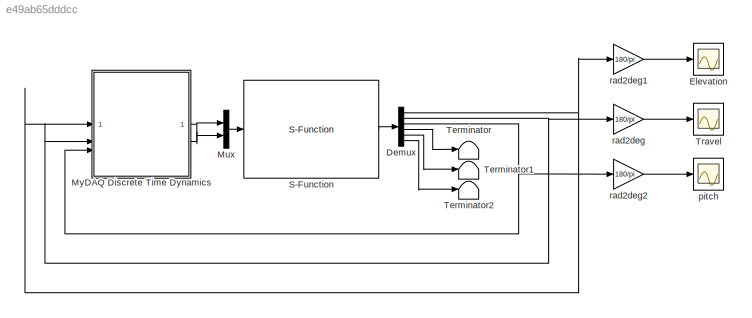
MODEL slx_e49ab65dddcc
KIND model
CONFIG AbsTol = auto
CONFIG EnableMultiTasking = on
CONFIG FixedStep = Ts
CONFIG MaxStep = auto
CONFIG MinStep = auto
CONFIG RelTol = 1e-5
CONFIG SampleTimeConstraint = Unconstrained
CONFIG SolverName = FixedStepAuto
CONFIG StartTime = 0.00
CONFIG StopTime = 10
BLOCK [S-Function]  S-Function
  EnableBusSupport = off
  FunctionName = Nonlinear_Helicopter_SFunc
  Parameters = par,X0
  SFcnIsStateOwnerBlock = off
  SFunctionDeploymentMode = off
BLOCK [Demux] Demux
  Outputs = 6
BLOCK [Scope] Elevation
  ActiveDisplayYMaximum = 30
  ActiveDisplayYMinimum = -50
  DataLogging = on
  DataLoggingDecimateData = on
  DataLoggingDecimation = 1
  DataLoggingSaveFormat = Structure With Time
  DataLoggingVariableName = elev
  Floating = off
  GraphicalSettings = {"GraphicalSettings":{"LegacySettings":true,"Style":{"AxesScalingProperties":{"ScaleAxesLimitsAtStop":false},"Style":{"AxesColor":"[0 0 0]","ChannelNames":[""],"ColorOrder":"[1 0.909803921568627 0.392156862745098;0.149019607843137 0.549019607843137 0.866666666666667;0.96078431372549 0.466666666666667 0.16078431372549;0.286274509803922 0.858823529411765 0.250980392156863;0.752941176470588 0.3607843...<+488ch>  <repeated x3 — deduplicated; at blocks: Elevation, Travel, pitch>
  MultipleDisplayCache = [{"MaxYLimMag":10,"MaxYLimReal":30,"MinYLimMag":0,"MinYLimReal":-50,"PlotAsMagnitudePhase":false,"ShowGrid":true,"ShowLegend":false,"Title":"%<SignalLabel>","YLabel":""}]
  NumInputPorts = 1
  ScopeFrameLocation = window
  TimeSpan = 60
  WasSavedAsWebScope = on
  WindowPosition = [1.000000,49.000000,1920.000000,955.000000,]
BLOCK [Mux] Mux
  DisplayOption = bar
  Inputs = 2
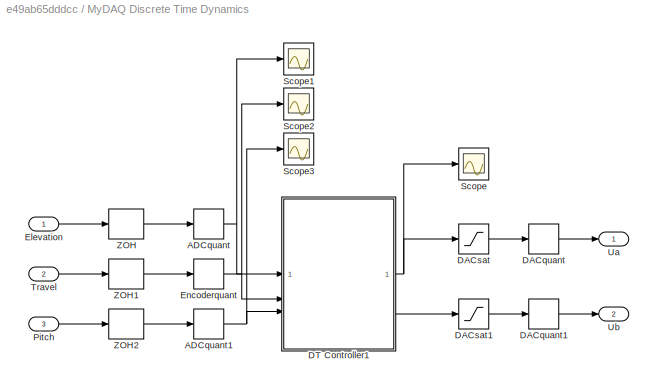
BLOCK [SubSystem] MyDAQ Discrete Time Dynamics
BLOCK [Quantizer] MyDAQ Discrete Time Dynamics/ADCquant
  QuantizationInterval = ADC_Vres
BLOCK [Quantizer] MyDAQ Discrete Time Dynamics/ADCquant1
  QuantizationInterval = ADC_Vres
BLOCK [Quantizer] MyDAQ Discrete Time Dynamics/DACquant
  QuantizationInterval = DAC_Vres
BLOCK [Quantizer] MyDAQ Discrete Time Dynamics/DACquant1
  QuantizationInterval = DAC_Vres
BLOCK [Saturate] MyDAQ Discrete Time Dynamics/DACsat
  LowerLimit = -DAC_lim_u
  UpperLimit = DAC_lim_u
BLOCK [Saturate] MyDAQ Discrete Time Dynamics/DACsat1
  LowerLimit = -DAC_lim_u
  UpperLimit = DAC_lim_u
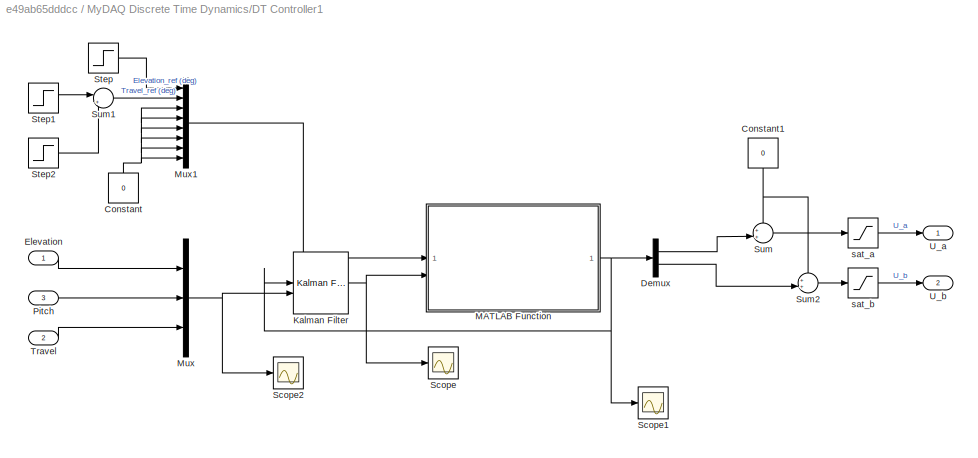
BLOCK [SubSystem] MyDAQ Discrete Time Dynamics/DT Controller1
BLOCK [Constant] MyDAQ Discrete Time Dynamics/DT Controller1/Constant
  NameLocation = right
  Value = 0
BLOCK [Constant] MyDAQ Discrete Time Dynamics/DT Controller1/Constant1
  NameLocation = left
  Value = 0
BLOCK [Demux] MyDAQ Discrete Time Dynamics/DT Controller1/Demux
  Outputs = 2
BLOCK [Inport] MyDAQ Discrete Time Dynamics/DT Controller1/Elevation
BLOCK [Reference] MyDAQ Discrete Time Dynamics/DT Controller1/Kalman Filter  REF=ctrlSharedLib/Kalman Filter
  LibrarySourceBlock = cstblocks/State Estimation/Kalman Filter
  SourceBlock = ctrlSharedLib/Kalman Filter
  SourceType = ctrlKalmanFilter
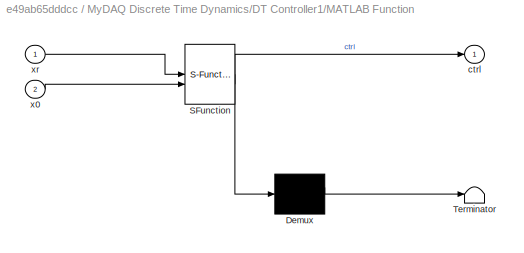
BLOCK [SubSystem] MyDAQ Discrete Time Dynamics/DT Controller1/MATLAB Function
  ErrorFcn = Stateflow.Translate.translate
  PermitHierarchicalResolution = ExplicitOnly
  SFBlockType = MATLAB Function
  TreatAsAtomicUnit = on
BLOCK [Demux] MyDAQ Discrete Time Dynamics/DT Controller1/MATLAB Function/ Demux 
  Outputs = 1
BLOCK [S-Function] MyDAQ Discrete Time Dynamics/DT Controller1/MATLAB Function/ SFunction 
  EnableBusSupport = off
  FunctionName = sf_sfun
  Parameters = N,Q,QN,l,nu,nx,q,u
  PortCounts = [2 2]
  SFcnIsStateOwnerBlock = off
  SFunctionDeploymentMode = off
  Tag = Stateflow S-Function 2
BLOCK [Terminator] MyDAQ Discrete Time Dynamics/DT Controller1/MATLAB Function/ Terminator 
BLOCK [Outport] MyDAQ Discrete Time Dynamics/DT Controller1/MATLAB Function/ctrl
BLOCK [Inport] MyDAQ Discrete Time Dynamics/DT Controller1/MATLAB Function/x0
  Port = 2
BLOCK [Inport] MyDAQ Discrete Time Dynamics/DT Controller1/MATLAB Function/xr
BLOCK [Mux] MyDAQ Discrete Time Dynamics/DT Controller1/Mux
  DisplayOption = bar
  Inputs = 3
BLOCK [Mux] MyDAQ Discrete Time Dynamics/DT Controller1/Mux1
  DisplayOption = bar
  Inputs = 8
BLOCK [Inport] MyDAQ Discrete Time Dynamics/DT Controller1/Pitch
  Port = 3
BLOCK [Scope] MyDAQ Discrete Time Dynamics/DT Controller1/Scope
  ActiveDisplayYMaximum = 1.6155430663981798
  ActiveDisplayYMinimum = -2.4396283803217269
  DataLoggingVariableName = ScopeData3
  Floating = off
  GraphicalSettings = {"Style":{"BackgroundColor":[0.12941176470588237,0.12941176470588237,0.12941176470588237],"AxesColor":[0.07058823529411765,0.07058823529411765,0.07058823529411765],"LabelsColor":[0.8509803921568627,0.8509803921568627,0.8509803921568627],"PreserveColors":false,"Visible":[true,true,true,false,false,false,false,false],"LineStyle":["-","-","-","-","-","-","-","-"],"LineWidth":[1.5,1.5,1.5,1.5,1.5,1.5,...<+2896ch>
  MultipleDisplayCache = [{"MaxYLimMag":0.80765936025648843,"MaxYLimReal":1.6155430663981798,"MinYLimMag":0,"MinYLimReal":-2.4396283803217269,"PlotAsMagnitudePhase":false,"ShowGrid":true,"ShowLegend":true,"Title":"%<SignalLabel>","YLabel":""}]
  NumInputPorts = 1
  ScopeFrameLocation = window
  ShowLegend = on
  Visible = on
  WasSavedAsWebScope = on
  WindowPosition = [-1918.000000,566.000000,1918.000000,484.000000,]
BLOCK [Scope] MyDAQ Discrete Time Dynamics/DT Controller1/Scope1
  ActiveDisplayYMaximum = 1
  ActiveDisplayYMinimum = -1
  DataLoggingVariableName = ScopeData4
  Floating = off
  GraphicalSettings = {"Style":{"BackgroundColor":[0.12941176470588237,0.12941176470588237,0.12941176470588237],"AxesColor":[0.07058823529411765,0.07058823529411765,0.07058823529411765],"LabelsColor":[0.8509803921568627,0.8509803921568627,0.8509803921568627],"PreserveColors":false,"Visible":[true,true],"LineStyle":["-","-"],"LineWidth":[1.5,1.5],"BarWidth":[0.9,0.9],"LineColor":["auto","auto"],"LineFaceAlpha":[1,1],"Li...<+2053ch>
  MultipleDisplayCache = [{"MaxYLimMag":1,"MaxYLimReal":1,"MinYLimMag":0,"MinYLimReal":-1,"PlotAsMagnitudePhase":false,"ShowGrid":true,"ShowLegend":false,"Title":"%<SignalLabel>","YLabel":""}]
  NumInputPorts = 1
  ScopeFrameLocation = window
  WasSavedAsWebScope = on
  WindowPosition = [423.000000,383.000000,560.000000,420.000000,]
BLOCK [Scope] MyDAQ Discrete Time Dynamics/DT Controller1/Scope2
  ActiveDisplayYMaximum = 1.1142569878492721
  ActiveDisplayYMinimum = -2.0543672469917391
  DataLoggingVariableName = ScopeData3
  Floating = off
  GraphicalSettings = {"Style":{"BackgroundColor":[0.12941176470588237,0.12941176470588237,0.12941176470588237],"AxesColor":[0.07058823529411765,0.07058823529411765,0.07058823529411765],"LabelsColor":[0.8509803921568627,0.8509803921568627,0.8509803921568627],"PreserveColors":false,"Visible":[true,true,true],"LineStyle":["-","-","-"],"LineWidth":[1.5,1.5,1.5],"BarWidth":[0.9,0.9,0.9],"LineColor":["auto","auto","auto"],"...<+2224ch>
  MultipleDisplayCache = [{"MaxYLimMag":1.3737432535026337,"MaxYLimReal":1.1142569878492721,"MinYLimMag":0,"MinYLimReal":-2.0543672469917391,"PlotAsMagnitudePhase":false,"ShowGrid":true,"ShowLegend":true,"Title":"%<SignalLabel>","YLabel":""}]
  NumInputPorts = 1
  ScopeFrameLocation = window
  ShowLegend = on
  WasSavedAsWebScope = on
  WindowPosition = [-1917.000000,50.000000,1920.000000,506.000000,]
BLOCK [Step] MyDAQ Discrete Time Dynamics/DT Controller1/Step
  After = 0
  Before = x0(1)
  SampleTime = Ts
  Time = 0
BLOCK [Step] MyDAQ Discrete Time Dynamics/DT Controller1/Step1
  After = 0
  SampleTime = Ts
  Time = x0(2)
BLOCK [Step] MyDAQ Discrete Time Dynamics/DT Controller1/Step2
  After = 0
  Before = x0(3)
  SampleTime = Ts
  Time = 0
BLOCK [Sum] MyDAQ Discrete Time Dynamics/DT Controller1/Sum
  Inputs = ++|
BLOCK [Sum] MyDAQ Discrete Time Dynamics/DT Controller1/Sum1
  Inputs = |+-
BLOCK [Sum] MyDAQ Discrete Time Dynamics/DT Controller1/Sum2
  Inputs = ++|
BLOCK [Inport] MyDAQ Discrete Time Dynamics/DT Controller1/Travel
  Port = 2
BLOCK [Outport] MyDAQ Discrete Time Dynamics/DT Controller1/U_a
BLOCK [Outport] MyDAQ Discrete Time Dynamics/DT Controller1/U_b
  Port = 2
BLOCK [Saturate] MyDAQ Discrete Time Dynamics/DT Controller1/sat_a
  LowerLimit = -DAC_lim_u
  UpperLimit = DAC_lim_u
BLOCK [Saturate] MyDAQ Discrete Time Dynamics/DT Controller1/sat_b
  LowerLimit = -DAC_lim_u
  UpperLimit = DAC_lim_u
BLOCK [Inport] MyDAQ Discrete Time Dynamics/Elevation
BLOCK [Quantizer] MyDAQ Discrete Time Dynamics/Encoderquant
  QuantizationInterval = Encoder_res
BLOCK [Inport] MyDAQ Discrete Time Dynamics/Pitch
  Port = 3
BLOCK [Scope] MyDAQ Discrete Time Dynamics/Scope
  ActiveDisplayYMaximum = 1
  ActiveDisplayYMinimum = -1
  DataLoggingVariableName = ScopeData1
  Floating = off
  GraphicalSettings = {"Style":{"BackgroundColor":[0.12941176470588237,0.12941176470588237,0.12941176470588237],"AxesColor":[0.07058823529411765,0.07058823529411765,0.07058823529411765],"LabelsColor":[0.8509803921568627,0.8509803921568627,0.8509803921568627],"PreserveColors":false,"Visible":[true],"LineStyle":["-"],"LineWidth":[1.5],"BarWidth":[0.9],"LineColor":["auto"],"LineFaceAlpha":[1],"LineEdgeAlpha":[1],"Marker":...<+1920ch>
  MultipleDisplayCache = [{"MaxYLimMag":1,"MaxYLimReal":1,"MinYLimMag":0,"MinYLimReal":-1,"PlotAsMagnitudePhase":false,"ShowGrid":true,"ShowLegend":false,"Title":"%<SignalLabel>","YLabel":""}]
  NumInputPorts = 1
  ScopeFrameLocation = window
  WasSavedAsWebScope = on
  WindowPosition = [812.000000,344.000000,560.000000,420.000000,]
BLOCK [Scope] MyDAQ Discrete Time Dynamics/Scope1
  ActiveDisplayYMaximum = 0.78714
  ActiveDisplayYMinimum = -0.1017
  DataLoggingVariableName = ScopeData2
  Floating = off
  GraphicalSettings = {"GraphicalSettings":{"LegacySettings":true,"Style":{"Style":{"AxesColor":"[0 0 0]","ChannelNames":[""],"ColorOrder":"[1 0.909803921568627 0.392156862745098;0.149019607843137 0.549019607843137 0.866666666666667;0.96078431372549 0.466666666666667 0.16078431372549;0.286274509803922 0.858823529411765 0.250980392156863;0.752941176470588 0.36078431372549 0.984313725490196;0.423529411764706 0.9568627450...<+432ch>  <repeated x3 — deduplicated; at blocks: Scope1, Scope2, Scope3>
  MultipleDisplayCache = [{"MaxYLimMag":0.78714,"MaxYLimReal":0.78714,"MinYLimMag":0,"MinYLimReal":-0.1017,"PlotAsMagnitudePhase":false,"ShowGrid":true,"ShowLegend":false,"Title":"%<SignalLabel>","YLabel":""}]
  NumInputPorts = 1
  WasSavedAsWebScope = on
  WindowPosition = [105 396 560 420]
BLOCK [Scope] MyDAQ Discrete Time Dynamics/Scope2
  ActiveDisplayYMaximum = 1
  ActiveDisplayYMinimum = -1
  DataLoggingVariableName = ScopeData1
  Floating = off
  MultipleDisplayCache = [{"MaxYLimMag":1,"MaxYLimReal":1,"MinYLimMag":0,"MinYLimReal":-1,"PlotAsMagnitudePhase":false,"ShowGrid":true,"ShowLegend":false,"Title":"%<SignalLabel>","YLabel":""}]
  NumInputPorts = 1
  WasSavedAsWebScope = on
  WindowPosition = [105 396 560 420]
BLOCK [Scope] MyDAQ Discrete Time Dynamics/Scope3
  ActiveDisplayYMaximum = 1
  ActiveDisplayYMinimum = -1
  DataLoggingVariableName = ScopeData2
  Floating = off
  MultipleDisplayCache = [{"MaxYLimMag":1,"MaxYLimReal":1,"MinYLimMag":0,"MinYLimReal":-1,"PlotAsMagnitudePhase":false,"ShowGrid":true,"ShowLegend":false,"Title":"%<SignalLabel>","YLabel":""}]
  NumInputPorts = 1
  WasSavedAsWebScope = on
  WindowPosition = [105 396 560 420]
BLOCK [Inport] MyDAQ Discrete Time Dynamics/Travel
  Port = 2
BLOCK [Outport] MyDAQ Discrete Time Dynamics/Ua
BLOCK [Outport] MyDAQ Discrete Time Dynamics/Ub
  Port = 2
BLOCK [ZeroOrderHold] MyDAQ Discrete Time Dynamics/ZOH
  SampleTime = Ts
BLOCK [ZeroOrderHold] MyDAQ Discrete Time Dynamics/ZOH1
  SampleTime = Ts
BLOCK [ZeroOrderHold] MyDAQ Discrete Time Dynamics/ZOH2
  SampleTime = Ts
BLOCK [Terminator] Terminator
BLOCK [Terminator] Terminator1
BLOCK [Terminator] Terminator2
BLOCK [Scope] Travel
  ActiveDisplayYMaximum = 300
  ActiveDisplayYMinimum = -150
  DataLogging = on
  DataLoggingDecimateData = on
  DataLoggingDecimation = 1
  DataLoggingSaveFormat = Structure With Time
  DataLoggingVariableName = trav
  Floating = off
  MultipleDisplayCache = [{"MaxYLimMag":10,"MaxYLimReal":300,"MinYLimMag":0,"MinYLimReal":-150,"PlotAsMagnitudePhase":false,"ShowGrid":true,"ShowLegend":false,"Title":"%<SignalLabel>","YLabel":""}]
  NumInputPorts = 1
  TimeSpan = 60
  WasSavedAsWebScope = on
  WindowPosition = [413 349 330 258]
BLOCK [Scope] pitch
  ActiveDisplayYMaximum = 20
  ActiveDisplayYMinimum = -25
  DataLogging = on
  DataLoggingDecimateData = on
  DataLoggingDecimation = 1
  DataLoggingSaveFormat = Structure With Time
  DataLoggingVariableName = pitch
  Floating = off
  MultipleDisplayCache = [{"MaxYLimMag":10,"MaxYLimReal":20,"MinYLimMag":0,"MinYLimReal":-25,"PlotAsMagnitudePhase":false,"ShowGrid":true,"ShowLegend":false,"Title":"%<SignalLabel>","YLabel":""}]
  NumInputPorts = 1
  TimeSpan = 60
  WasSavedAsWebScope = on
  WindowPosition = [745 346 483 267]
BLOCK [Gain] rad2deg
  Gain = 180/pi
  OutDataTypeStr = Inherit: Same as input
  ParamDataTypeStr = Inherit: Same as input
  SaturateOnIntegerOverflow = on
BLOCK [Gain] rad2deg1
  Gain = 180/pi
  OutDataTypeStr = Inherit: Same as input
  ParamDataTypeStr = Inherit: Same as input
  SaturateOnIntegerOverflow = on
BLOCK [Gain] rad2deg2
  Gain = 180/pi
  OutDataTypeStr = Inherit: Same as input
  ParamDataTypeStr = Inherit: Same as input
  SaturateOnIntegerOverflow = on
LINE  S-Function:1 -> Demux:1
NET Demux:1 -> MyDAQ Discrete Time Dynamics:1, rad2deg1:1
NET Demux:2 -> MyDAQ Discrete Time Dynamics:2, rad2deg:1
NET Demux:3 -> MyDAQ Discrete Time Dynamics:3, rad2deg2:1
LINE Demux:4 -> Terminator:1
LINE Demux:5 -> Terminator1:1
LINE Demux:6 -> Terminator2:1
LINE Mux:1 ->  S-Function:1
NET MyDAQ Discrete Time Dynamics/ADCquant1:1 -> MyDAQ Discrete Time Dynamics/DT Controller1:3, MyDAQ Discrete Time Dynamics/Scope3:1
NET MyDAQ Discrete Time Dynamics/ADCquant:1 -> MyDAQ Discrete Time Dynamics/DT Controller1:1, MyDAQ Discrete Time Dynamics/Scope1:1
LINE MyDAQ Discrete Time Dynamics/DACquant1:1 -> MyDAQ Discrete Time Dynamics/Ub:1
LINE MyDAQ Discrete Time Dynamics/DACquant:1 -> MyDAQ Discrete Time Dynamics/Ua:1
LINE MyDAQ Discrete Time Dynamics/DACsat1:1 -> MyDAQ Discrete Time Dynamics/DACquant1:1
LINE MyDAQ Discrete Time Dynamics/DACsat:1 -> MyDAQ Discrete Time Dynamics/DACquant:1
NET MyDAQ Discrete Time Dynamics/DT Controller1/Constant1:1 -> MyDAQ Discrete Time Dynamics/DT Controller1/Sum2:1, MyDAQ Discrete Time Dynamics/DT Controller1/Sum:1
NET MyDAQ Discrete Time Dynamics/DT Controller1/Constant:1 -> MyDAQ Discrete Time Dynamics/DT Controller1/Mux1:3, MyDAQ Discrete Time Dynamics/DT Controller1/Mux1:4, MyDAQ Discrete Time Dynamics/DT Controller1/Mux1:5, MyDAQ Discrete Time Dynamics/DT Controller1/Mux1:6, MyDAQ Discrete Time Dynamics/DT Controller1/Mux1:7, MyDAQ Discrete Time Dynamics/DT Controller1/Mux1:8
LINE MyDAQ Discrete Time Dynamics/DT Controller1/Demux:1 -> MyDAQ Discrete Time Dynamics/DT Controller1/Sum:2
LINE MyDAQ Discrete Time Dynamics/DT Controller1/Demux:2 -> MyDAQ Discrete Time Dynamics/DT Controller1/Sum2:2
LINE MyDAQ Discrete Time Dynamics/DT Controller1/Elevation:1 -> MyDAQ Discrete Time Dynamics/DT Controller1/Mux:1
NET MyDAQ Discrete Time Dynamics/DT Controller1/Kalman Filter:1 -> MyDAQ Discrete Time Dynamics/DT Controller1/MATLAB Function:2, MyDAQ Discrete Time Dynamics/DT Controller1/Scope:1
NET MyDAQ Discrete Time Dynamics/DT Controller1/MATLAB Function:1 -> MyDAQ Discrete Time Dynamics/DT Controller1/Demux:1, MyDAQ Discrete Time Dynamics/DT Controller1/Kalman Filter:1, MyDAQ Discrete Time Dynamics/DT Controller1/Scope1:1
LINE MyDAQ Discrete Time Dynamics/DT Controller1/Mux1:1 -> MyDAQ Discrete Time Dynamics/DT Controller1/MATLAB Function:1
NET MyDAQ Discrete Time Dynamics/DT Controller1/Mux:1 -> MyDAQ Discrete Time Dynamics/DT Controller1/Kalman Filter:2, MyDAQ Discrete Time Dynamics/DT Controller1/Scope2:1
LINE MyDAQ Discrete Time Dynamics/DT Controller1/Pitch:1 -> MyDAQ Discrete Time Dynamics/DT Controller1/Mux:2
LINE MyDAQ Discrete Time Dynamics/DT Controller1/Step1:1 -> MyDAQ Discrete Time Dynamics/DT Controller1/Sum1:1
LINE MyDAQ Discrete Time Dynamics/DT Controller1/Step2:1 -> MyDAQ Discrete Time Dynamics/DT Controller1/Sum1:2
LINE MyDAQ Discrete Time Dynamics/DT Controller1/Step:1 -> MyDAQ Discrete Time Dynamics/DT Controller1/Mux1:1
LINE MyDAQ Discrete Time Dynamics/DT Controller1/Sum1:1 -> MyDAQ Discrete Time Dynamics/DT Controller1/Mux1:2
LINE MyDAQ Discrete Time Dynamics/DT Controller1/Sum2:1 -> MyDAQ Discrete Time Dynamics/DT Controller1/sat_b:1
LINE MyDAQ Discrete Time Dynamics/DT Controller1/Sum:1 -> MyDAQ Discrete Time Dynamics/DT Controller1/sat_a:1
LINE MyDAQ Discrete Time Dynamics/DT Controller1/Travel:1 -> MyDAQ Discrete Time Dynamics/DT Controller1/Mux:3
LINE MyDAQ Discrete Time Dynamics/DT Controller1/sat_a:1 -> MyDAQ Discrete Time Dynamics/DT Controller1/U_a:1
LINE MyDAQ Discrete Time Dynamics/DT Controller1/sat_b:1 -> MyDAQ Discrete Time Dynamics/DT Controller1/U_b:1
NET MyDAQ Discrete Time Dynamics/DT Controller1:1 -> MyDAQ Discrete Time Dynamics/DACsat:1, MyDAQ Discrete Time Dynamics/Scope:1
LINE MyDAQ Discrete Time Dynamics/DT Controller1:2 -> MyDAQ Discrete Time Dynamics/DACsat1:1
LINE MyDAQ Discrete Time Dynamics/Elevation:1 -> MyDAQ Discrete Time Dynamics/ZOH:1
NET MyDAQ Discrete Time Dynamics/Encoderquant:1 -> MyDAQ Discrete Time Dynamics/DT Controller1:2, MyDAQ Discrete Time Dynamics/Scope2:1
LINE MyDAQ Discrete Time Dynamics/Pitch:1 -> MyDAQ Discrete Time Dynamics/ZOH2:1
LINE MyDAQ Discrete Time Dynamics/Travel:1 -> MyDAQ Discrete Time Dynamics/ZOH1:1
LINE MyDAQ Discrete Time Dynamics/ZOH1:1 -> MyDAQ Discrete Time Dynamics/Encoderquant:1
LINE MyDAQ Discrete Time Dynamics/ZOH2:1 -> MyDAQ Discrete Time Dynamics/ADCquant1:1
LINE MyDAQ Discrete Time Dynamics/ZOH:1 -> MyDAQ Discrete Time Dynamics/ADCquant:1
LINE MyDAQ Discrete Time Dynamics:1 -> Mux:1
LINE MyDAQ Discrete Time Dynamics:2 -> Mux:2
LINE rad2deg1:1 -> Elevation:1
LINE rad2deg2:1 -> pitch:1
LINE rad2deg:1 -> Travel:1
note: NET lines group one-source signal fan-out (src -> all destinations, sorted); 1:1 wires keep LINE
CHART MyDAQ
Discrete Time
Dynamics/DT Controller1/MATLAB Function states=1 transitions=1
  STATE_LABEL 'eML_blk_kernel()'
  STATE_LABEL "SCRIPT:\nfunction ctrl = mpc_step(xr, x0, l, u, q, Q, QN, nx, nu, N)\n\n    coder.extrinsic('emosqp')\n    % Update OSQP problem\n    % Update initial state\n\n    l(1:nx) = -x0;\n    u(1:nx) = -x0;\n    % l(1:nx) = -(x0-xfe);\n    % u(1:nx) = -(x0-xfe);\n\n    % Update cost for variable xr\n    q = [repmat(-Q*xr, N, 1); -QN*xr; zeros(N*nu, 1)];\n\n    emosqp('update_bounds', l, u);\n    emosqp('update_lin_cost',...<+151ch>"
CHART  states=0 transitions=0
